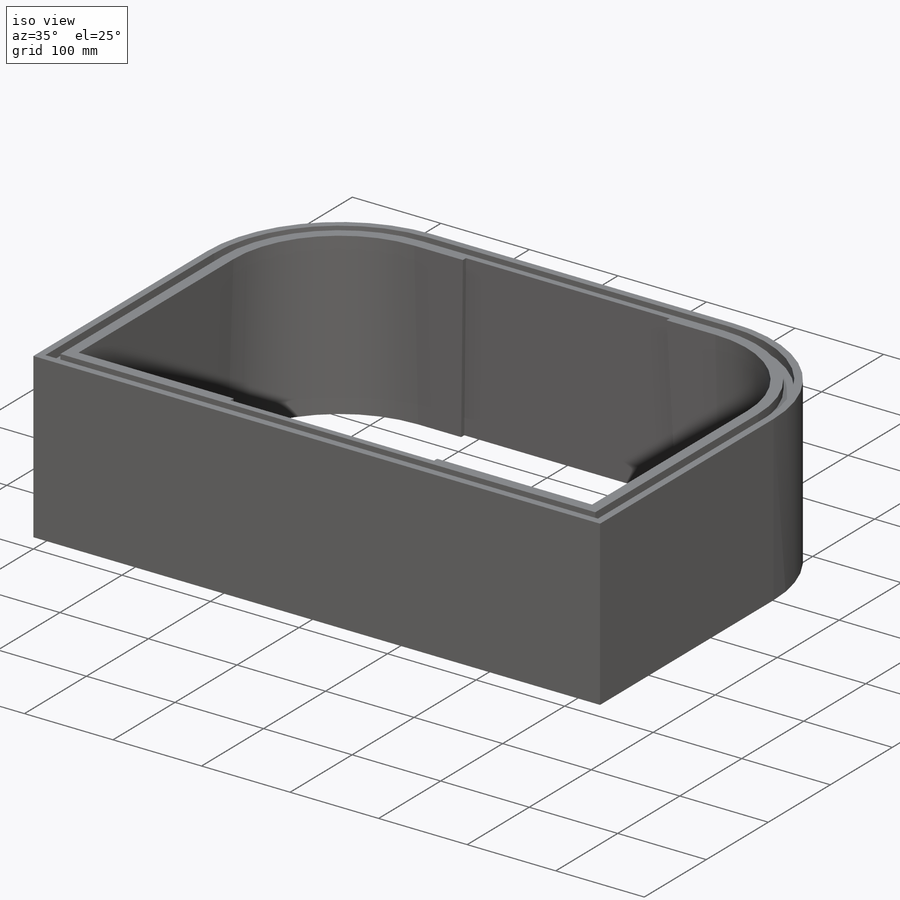
[diagram: iso view]
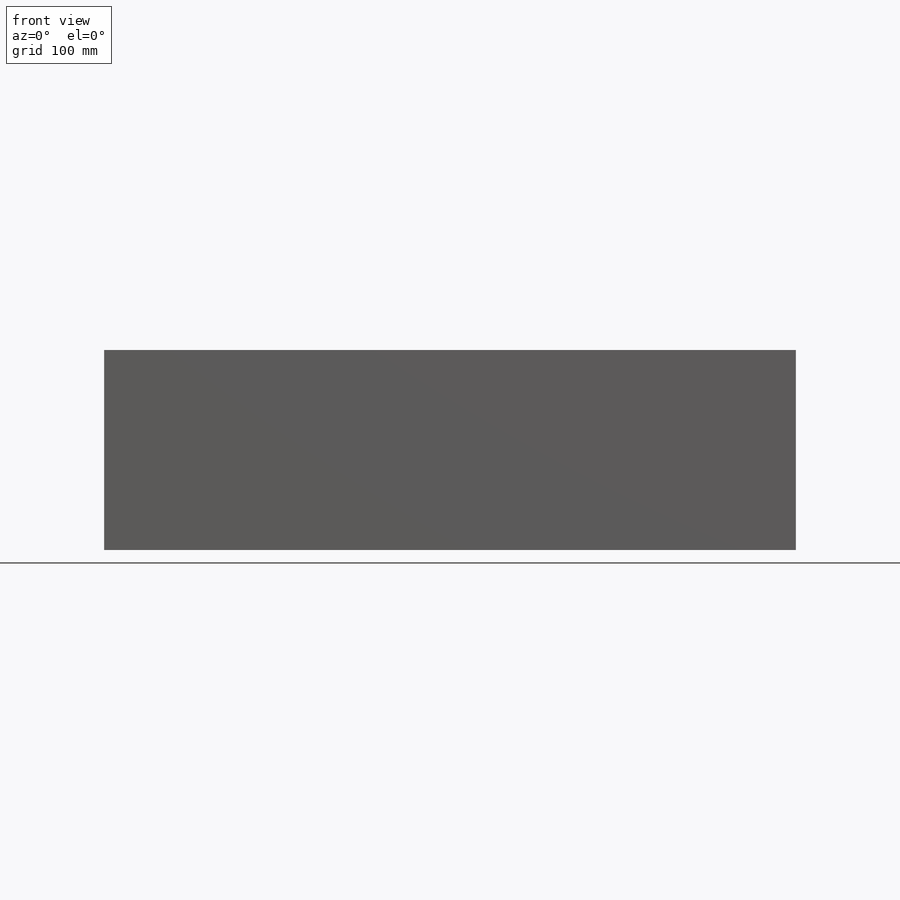
[diagram: front view]
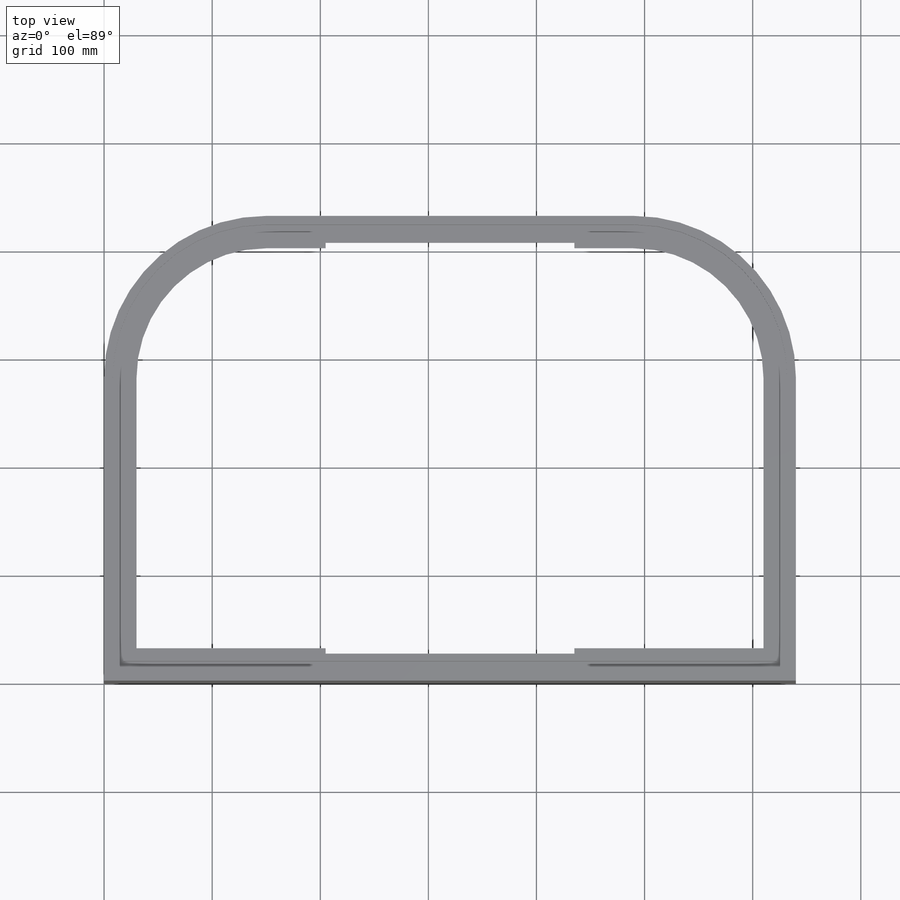
[diagram: top view]
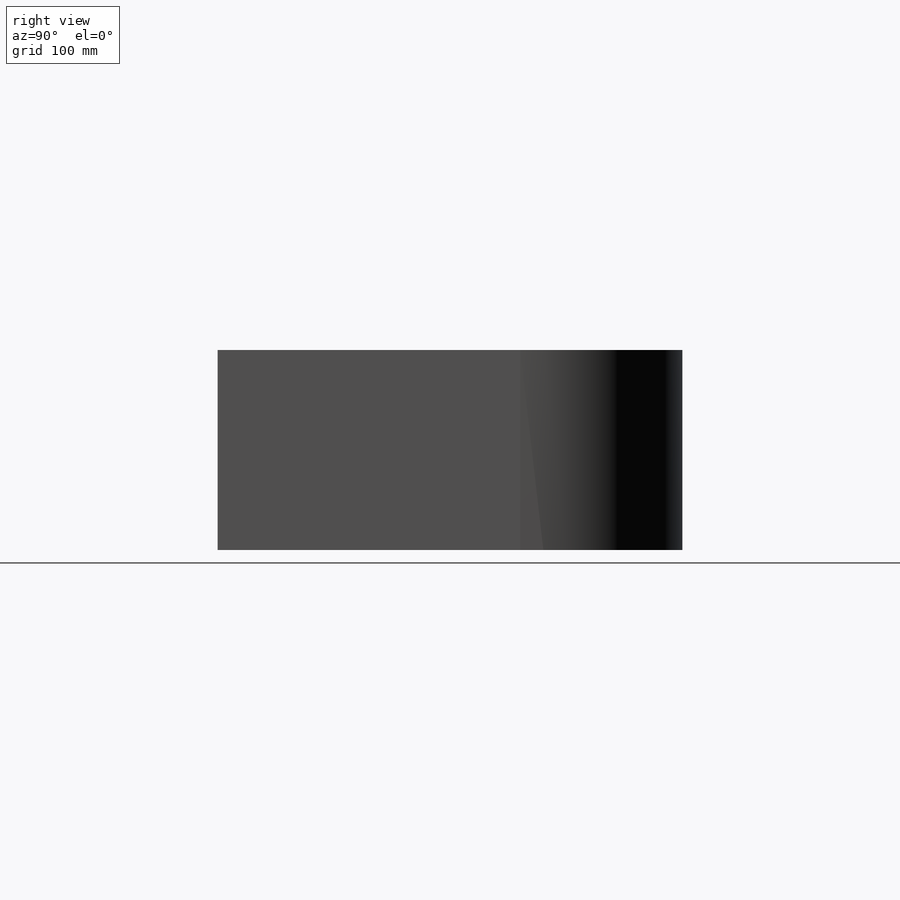
[diagram: right view]
SOLIDWORKS PART (.sldprt)
format: sldprt  version: not decoded by parser v0  size: 256,512 bytes
history: native  units: mm
features: plane x3, sketch x3, material x1, extrude x1, fillet x1, cut_extrude x1 (+10 scaffold rows collapsed)
feature tree (20):
  scaffold x10  (default folders/planes/origin — collapsed)
  material  "Material <nicht festgelegt>"
  plane  "Ebene vorne"
  plane  "Ebene oben"
  plane  "Ebene rechts"
  sketch  "Skizze1"  dims[c1.D1=~70.193655mm c2.D1=640.0mm c2.D2=430.0mm]
  extrude  "Aufsatz-Linear austragen1"  Depth=185mm
  fillet  "Verrundung1"  Radius=150mm
  sketch  "Skizze2"  dims[c1.D2=340.0mm c2.D2=25.0mm c2.D3=25.0mm c2.D4=280.0mm c3.D4=205.0mm c3.D1=30.0mm]
  cut_extrude  "Schnitt-Linear austragen1"  [1 undecoded]
  sketch  "Skizze3"  dims[c1.D1=8.0mm c2.D1=10.0mm c2.D5=10.0mm c2.D6=1.0mm c2.D7=5.0mm]
decode coverage: 5 of 6 modeling features carry decoded parameters
note: ~ marks probable driven/reference dimensions
note: 1 parameter value undecoded
note: suppression state not decoded; provenance and decode notes live in map.json
